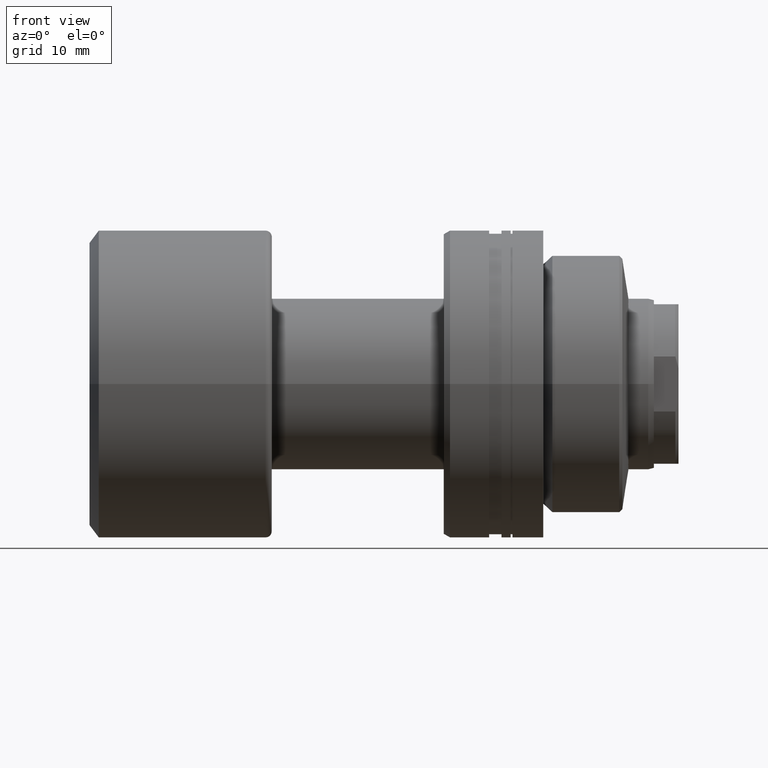
[diagram: clean part render]
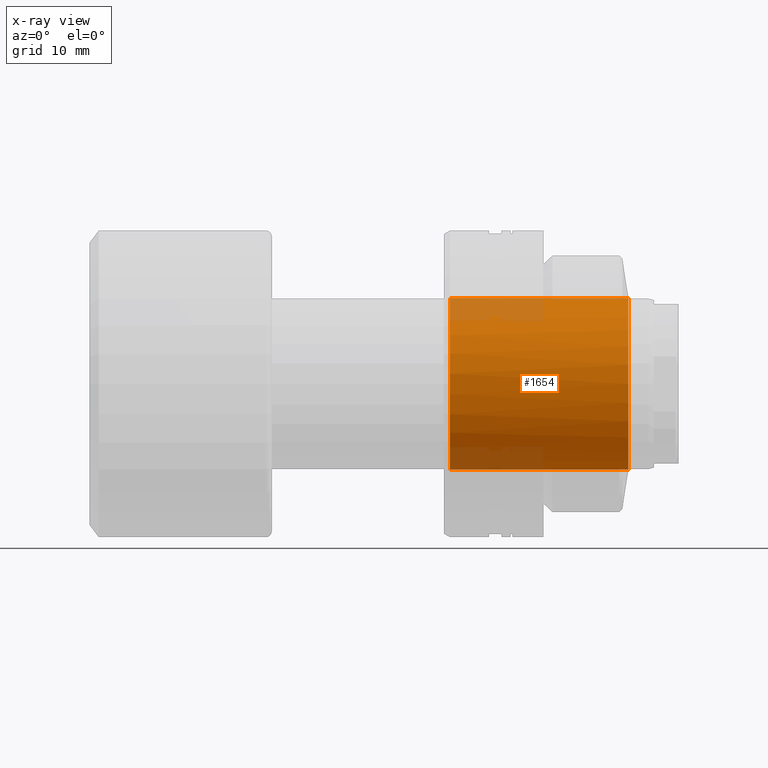
[diagram: x-ray — body ghosted, one internal face saturated and labeled with its STEP entity id]
A machine part, front view, then the same camera in x-ray: the body is ghosted and one INTERNAL B-rep face — a face not visible from any outside direction — is saturated and labeled: STEP entity #1654.
In plain terms, the highlighted cylindrical surface (partial cylindrical patch) has radius 14 mm, axis along (1, 0, 0).
Its self-contained STEP definition (entity closure, byte-faithful):
#18 = CARTESIAN_POINT ( 'NONE',  ( -2.117073170732186593, 0.000000000000000000, -14.00000000000000178 ) ) ;
#40 = VERTEX_POINT ( 'NONE', #141 ) ;
#76 = CIRCLE ( 'NONE', #111, 14.00000000000000178 ) ;
#111 = AXIS2_PLACEMENT_3D ( 'NONE', #703, #1103, #1621 ) ;
#141 = CARTESIAN_POINT ( 'NONE',  ( -2.117073170732186593, 1.714505518806296807E-15, 14.00000000000000178 ) ) ;
#186 = EDGE_CURVE ( 'NONE', #2000, #40, #365, .T. ) ;
#200 = AXIS2_PLACEMENT_3D ( 'NONE', #1595, #1081, #542 ) ;
#231 = DIRECTION ( 'NONE',  ( 1.920586705545750655E-15, -1.000000000000000000, 0.000000000000000000 ) ) ;
#241 = EDGE_CURVE ( 'NONE', #959, #2000, #76, .T. ) ;
#258 = DIRECTION ( 'NONE',  ( 1.920586705545750655E-15, -1.000000000000000000, 0.000000000000000000 ) ) ;
#307 = ORIENTED_EDGE ( 'NONE', *, *, #186, .T. ) ;
#365 = LINE ( 'NONE', #715, #485 ) ;
#370 = CYLINDRICAL_SURFACE ( 'NONE', #200, 14.00000000000000178 ) ;
#382 = VECTOR ( 'NONE', #791, 1000.000000000000000 ) ;
#426 = CARTESIAN_POINT ( 'NONE',  ( -2.117073170732186593, 5.439376342916023700E-14, 0.000000000000000000 ) ) ;
#447 = ORIENTED_EDGE ( 'NONE', *, *, #241, .T. ) ;
#485 = VECTOR ( 'NONE', #1068, 1000.000000000000000 ) ;
#535 = CIRCLE ( 'NONE', #1936, 14.00000000000000178 ) ;
#542 = DIRECTION ( 'NONE',  ( 0.000000000000000000, 0.000000000000000000, -1.000000000000000000 ) ) ;
#613 = DIRECTION ( 'NONE',  ( -1.000000000000000000, -1.931394410353556421E-15, 0.000000000000000000 ) ) ;
#629 = ORIENTED_EDGE ( 'NONE', *, *, #1357, .F. ) ;
#642 = CARTESIAN_POINT ( 'NONE',  ( -71.79797974644668557, 0.000000000000000000, -14.00000000000000178 ) ) ;
#703 = CARTESIAN_POINT ( 'NONE',  ( -31.20000000000002061, 0.000000000000000000, 0.000000000000000000 ) ) ;
#715 = CARTESIAN_POINT ( 'NONE',  ( -71.79797974644668557, 1.714505518806294835E-15, 14.00000000000000178 ) ) ;
#782 = LINE ( 'NONE', #642, #382 ) ;
#791 = DIRECTION ( 'NONE',  ( 1.000000000000000000, -0.000000000000000000, -0.000000000000000000 ) ) ;
#833 = CIRCLE ( 'NONE', #2127, 14.00000000000000178 ) ;
#845 = VERTEX_POINT ( 'NONE', #18 ) ;
#954 = DIRECTION ( 'NONE',  ( -1.000000000000000000, -1.931394410353556421E-15, 0.000000000000000000 ) ) ;
#959 = VERTEX_POINT ( 'NONE', #1148 ) ;
#1068 = DIRECTION ( 'NONE',  ( 1.000000000000000000, -0.000000000000000000, -0.000000000000000000 ) ) ;
#1081 = DIRECTION ( 'NONE',  ( 1.000000000000000000, -0.000000000000000000, -0.000000000000000000 ) ) ;
#1103 = DIRECTION ( 'NONE',  ( -1.000000000000000000, 0.000000000000000000, 0.000000000000000000 ) ) ;
#1148 = CARTESIAN_POINT ( 'NONE',  ( -31.20000000000002061, 0.000000000000000000, -14.00000000000000178 ) ) ;
#1292 = EDGE_LOOP ( 'NONE', ( #447, #307, #1743, #2182, #629 ) ) ;
#1357 = EDGE_CURVE ( 'NONE', #959, #845, #782, .T. ) ;
#1379 = CARTESIAN_POINT ( 'NONE',  ( -31.20000000000002061, 1.714505518806294835E-15, 14.00000000000000178 ) ) ;
#1595 = CARTESIAN_POINT ( 'NONE',  ( -71.79797974644668557, 0.000000000000000000, 0.000000000000000000 ) ) ;
#1621 = DIRECTION ( 'NONE',  ( 0.000000000000000000, 0.000000000000000000, -1.000000000000000000 ) ) ;
#1654 = ADVANCED_FACE ( 'NONE', ( #1937 ), #370, .F. ) ;
#1663 = CARTESIAN_POINT ( 'NONE',  ( -2.117073170732186593, 5.439376342916023700E-14, 0.000000000000000000 ) ) ;
#1739 = CARTESIAN_POINT ( 'NONE',  ( -2.117073170732159948, -13.99999999999994849, 0.000000000000000000 ) ) ;
#1743 = ORIENTED_EDGE ( 'NONE', *, *, #1813, .F. ) ;
#1752 = EDGE_CURVE ( 'NONE', #845, #2007, #535, .T. ) ;
#1813 = EDGE_CURVE ( 'NONE', #2007, #40, #833, .T. ) ;
#1936 = AXIS2_PLACEMENT_3D ( 'NONE', #426, #613, #231 ) ;
#1937 = FACE_OUTER_BOUND ( 'NONE', #1292, .T. ) ;
#2000 = VERTEX_POINT ( 'NONE', #1379 ) ;
#2007 = VERTEX_POINT ( 'NONE', #1739 ) ;
#2127 = AXIS2_PLACEMENT_3D ( 'NONE', #1663, #954, #258 ) ;
#2182 = ORIENTED_EDGE ( 'NONE', *, *, #1752, .F. ) ;